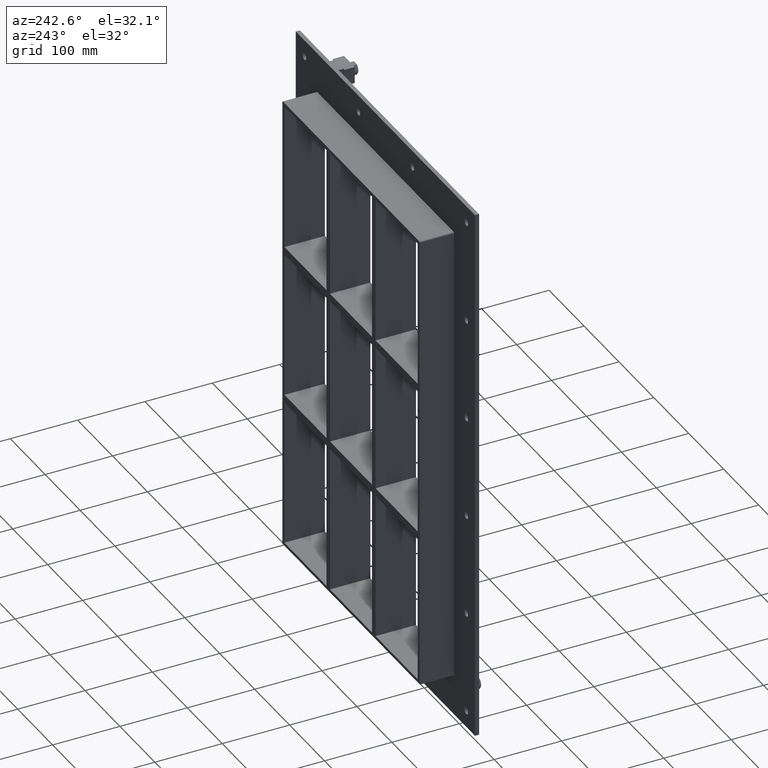
[diagram: clean part render]
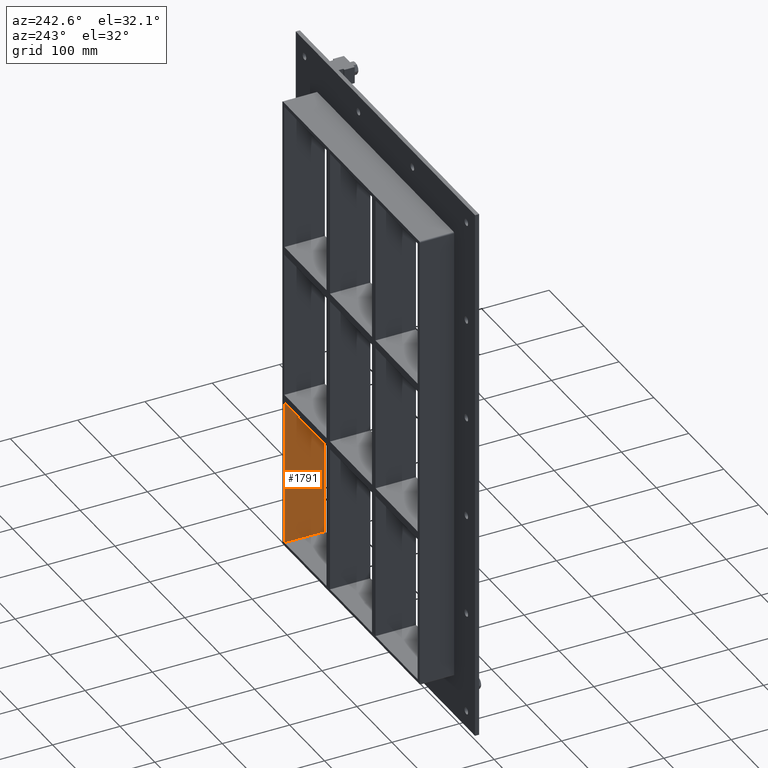
[diagram: same view with one face highlighted and labeled with its STEP entity id]
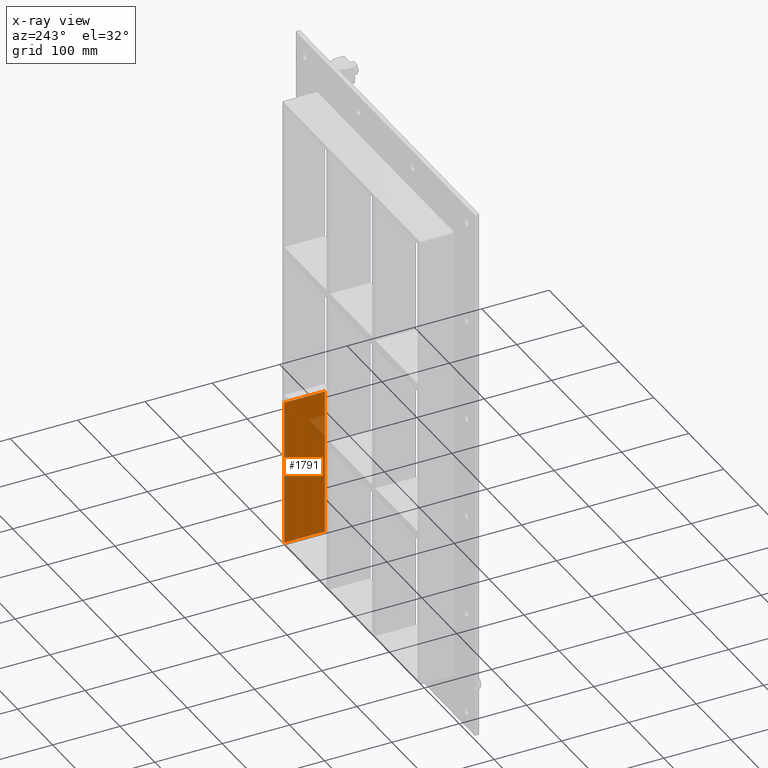
[diagram: x-ray of the same camera — body ghosted, the highlighted face saturated]
A machine part, auxiliary view. The second image highlights one B-rep face of the part: STEP entity #1791.
The next image is the same camera in x-ray: the body ghosted, the highlighted face saturated — about 5% of this face is hidden behind the body in this view.
In plain terms, the highlighted planar face has unit normal (1, 0, 0).
Its self-contained STEP definition (entity closure, byte-faithful):
#1225=CARTESIAN_POINT('',(190.75000000000006,57.0,-339.00000000000006));
#1226=VERTEX_POINT('',#1225);
#1233=CARTESIAN_POINT('',(190.75000000000728,57.0,-121.000000000011));
#1234=VERTEX_POINT('',#1233);
#1235=CARTESIAN_POINT('',(190.75000000000006,57.0,-339.00000000000006));
#1236=DIRECTION('',(0.0,0.0,1.0));
#1237=VECTOR('',#1236,217.99999999998909);
#1238=LINE('',#1235,#1237);
#1239=EDGE_CURVE('',#1226,#1234,#1238,.T.);
#1398=CARTESIAN_POINT('',(190.75000000000006,-3.0,-339.00000000000006));
#1399=VERTEX_POINT('',#1398);
#1406=CARTESIAN_POINT('',(190.75000000000006,56.999999999999993,-339.00000000000006));
#1407=DIRECTION('',(0.0,-1.0,0.0));
#1408=VECTOR('',#1407,59.999999999999993);
#1409=LINE('',#1406,#1408);
#1410=EDGE_CURVE('',#1226,#1399,#1409,.T.);
#1590=CARTESIAN_POINT('',(190.75000000000728,-3.0,-121.000000000011));
#1591=VERTEX_POINT('',#1590);
#1598=CARTESIAN_POINT('',(190.75000000000006,-3.0,-121.00000000001097));
#1599=DIRECTION('',(0.0,0.0,-1.0));
#1600=VECTOR('',#1599,217.99999999998909);
#1601=LINE('',#1598,#1600);
#1602=EDGE_CURVE('',#1591,#1399,#1601,.T.);
#1649=CARTESIAN_POINT('',(190.75000000000006,-3.0,-121.00000000001097));
#1650=DIRECTION('',(0.0,1.0,0.0));
#1651=VECTOR('',#1650,60.000000000000007);
#1652=LINE('',#1649,#1651);
#1653=EDGE_CURVE('',#1591,#1234,#1652,.T.);
#1780=CARTESIAN_POINT('',(190.75000000000006,0.0,339.00000000000011));
#1781=DIRECTION('',(1.0,0.0,0.0));
#1782=DIRECTION('',(0.0,0.0,-1.0));
#1783=AXIS2_PLACEMENT_3D('',#1780,#1781,#1782);
#1784=PLANE('',#1783);
#1785=ORIENTED_EDGE('',*,*,#1653,.T.);
#1786=ORIENTED_EDGE('',*,*,#1239,.F.);
#1787=ORIENTED_EDGE('',*,*,#1410,.T.);
#1788=ORIENTED_EDGE('',*,*,#1602,.F.);
#1789=EDGE_LOOP('',(#1785,#1786,#1787,#1788));
#1790=FACE_OUTER_BOUND('',#1789,.T.);
#1791=ADVANCED_FACE('',(#1790),#1784,.F.);